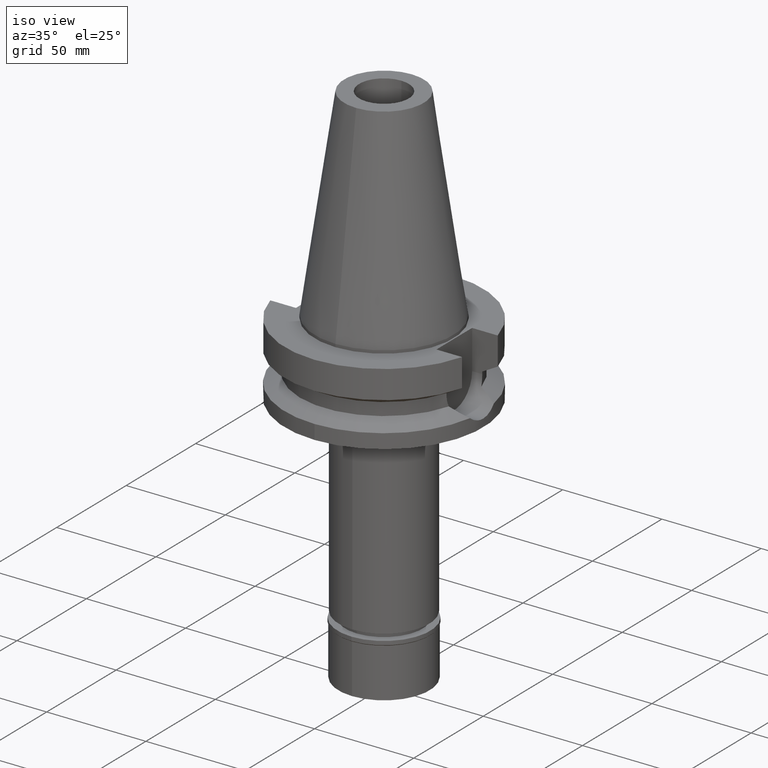
[diagram: clean part render]
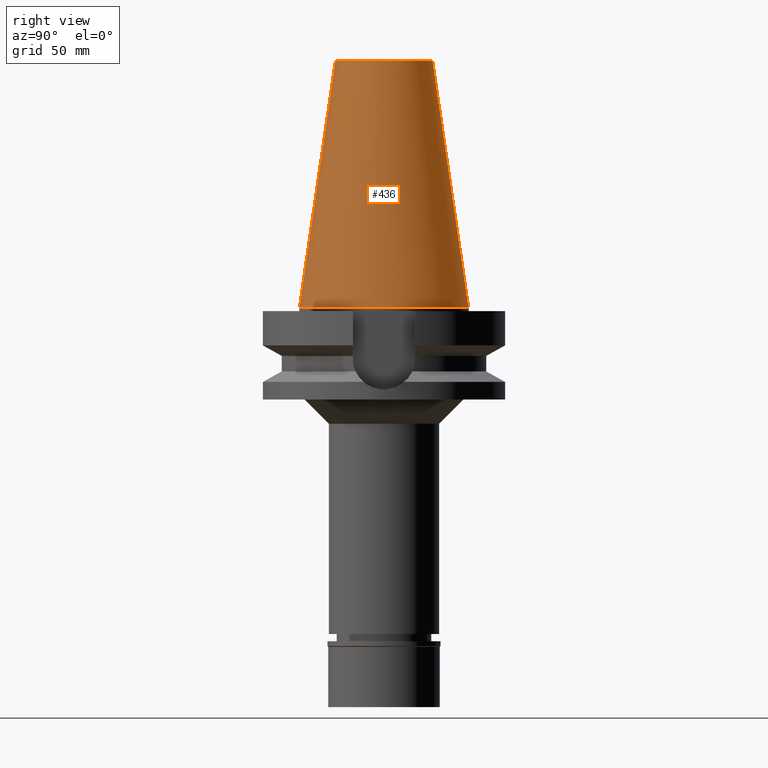
[diagram: tour spotlight — one face highlighted and labeled with its STEP entity id]
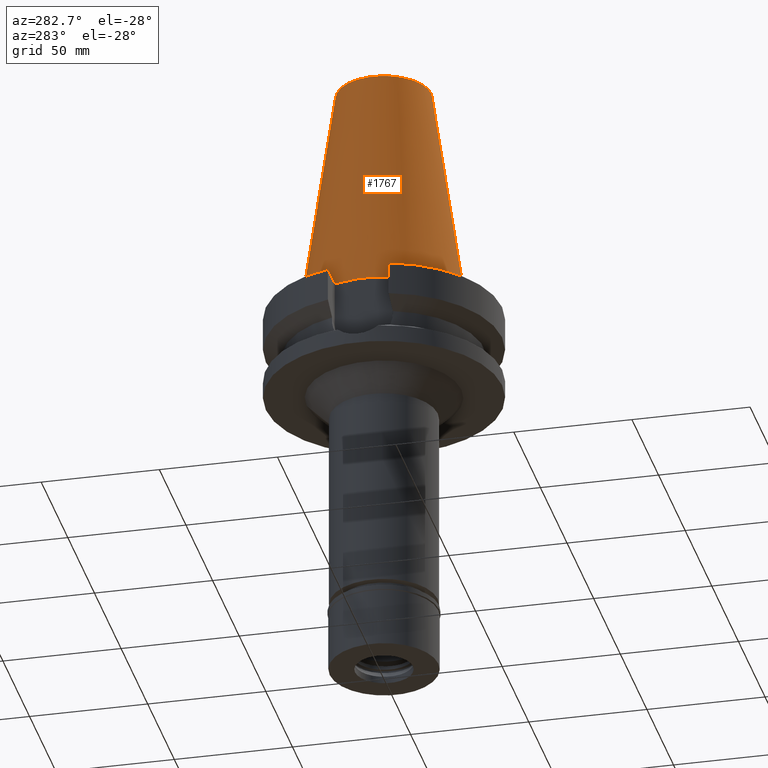
[diagram: tour spotlight — one face highlighted and labeled with its STEP entity id]
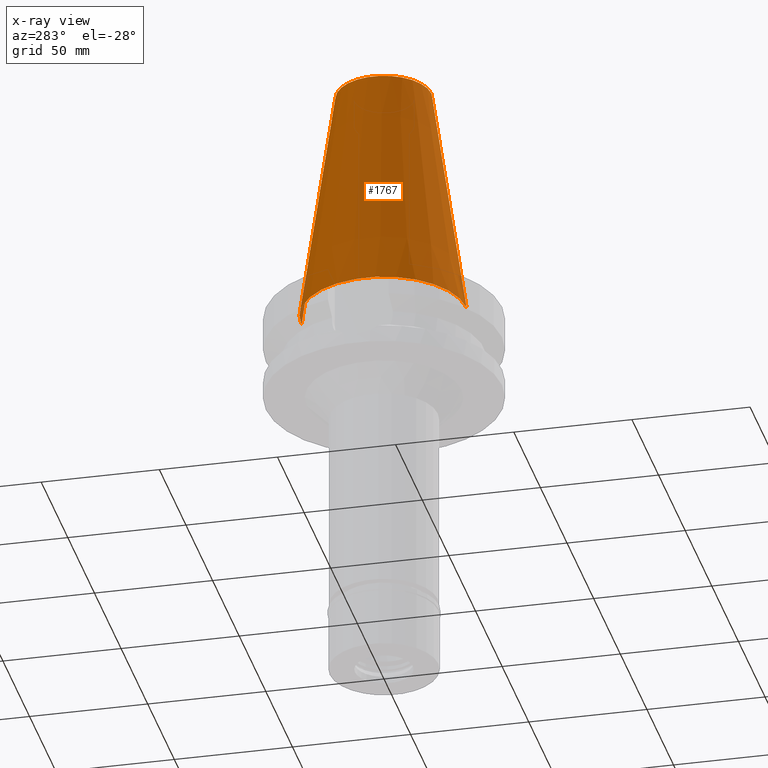
[diagram: x-ray of the same camera — body ghosted, this tour face saturated]
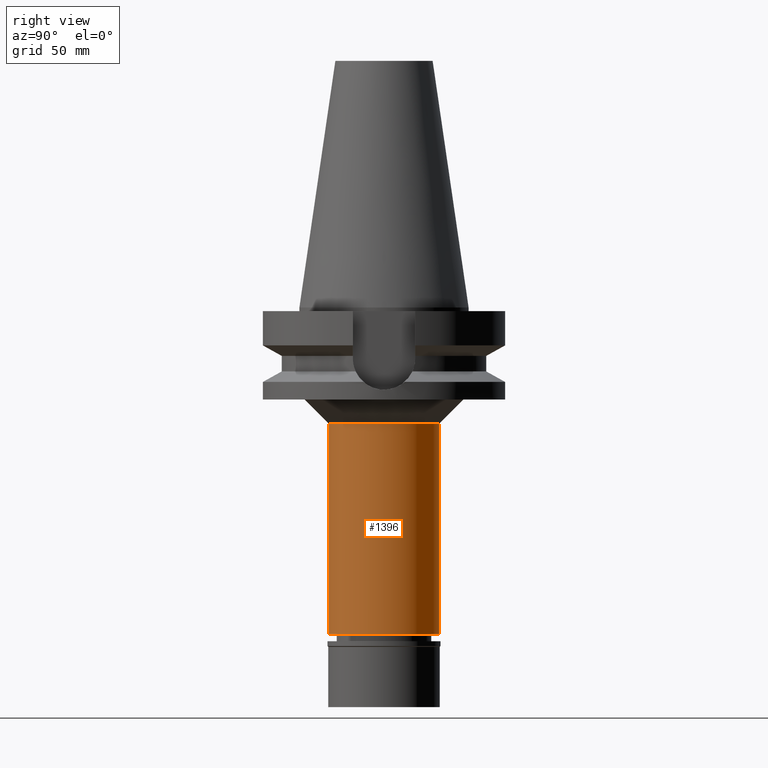
[diagram: tour spotlight — one face highlighted and labeled with its STEP entity id]
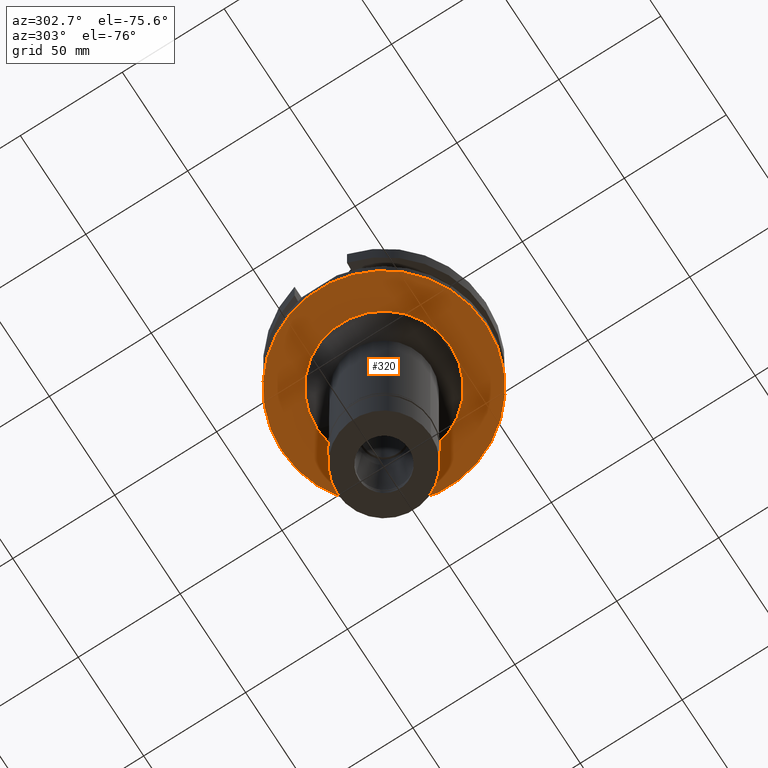
[diagram: tour spotlight — one face highlighted and labeled with its STEP entity id]
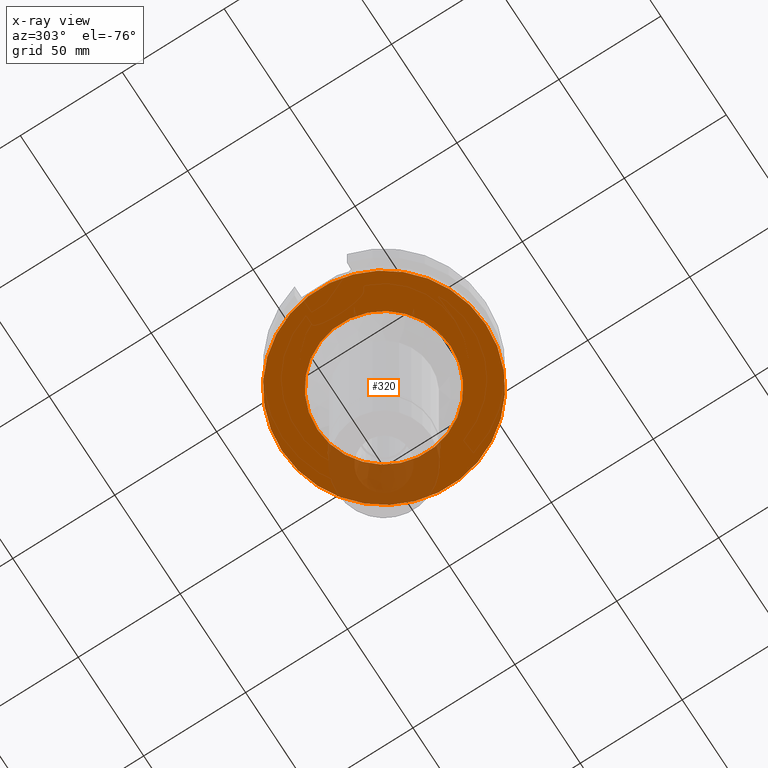
[diagram: x-ray of the same camera — body ghosted, this tour face saturated]
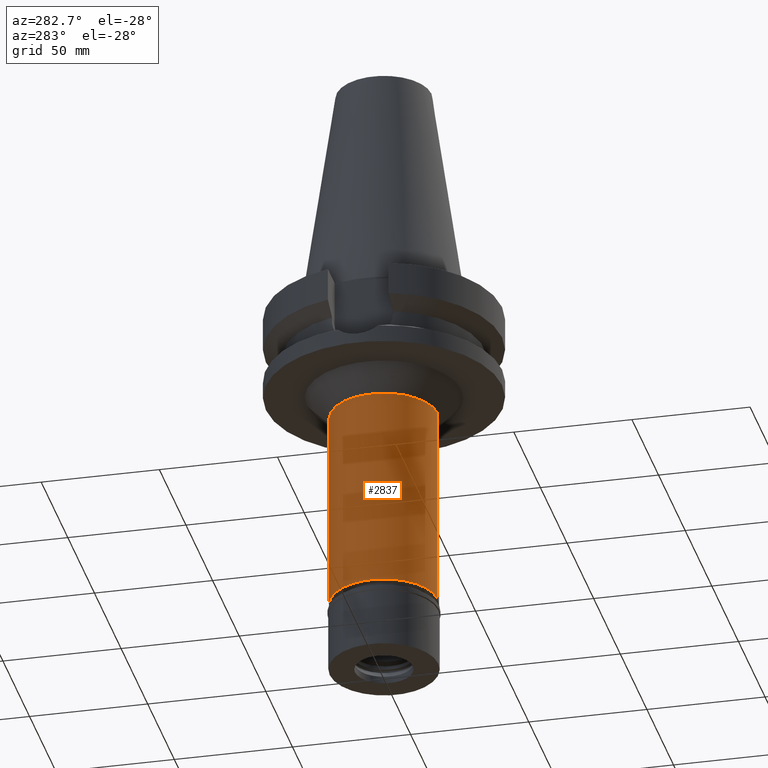
[diagram: tour spotlight — one face highlighted and labeled with its STEP entity id]
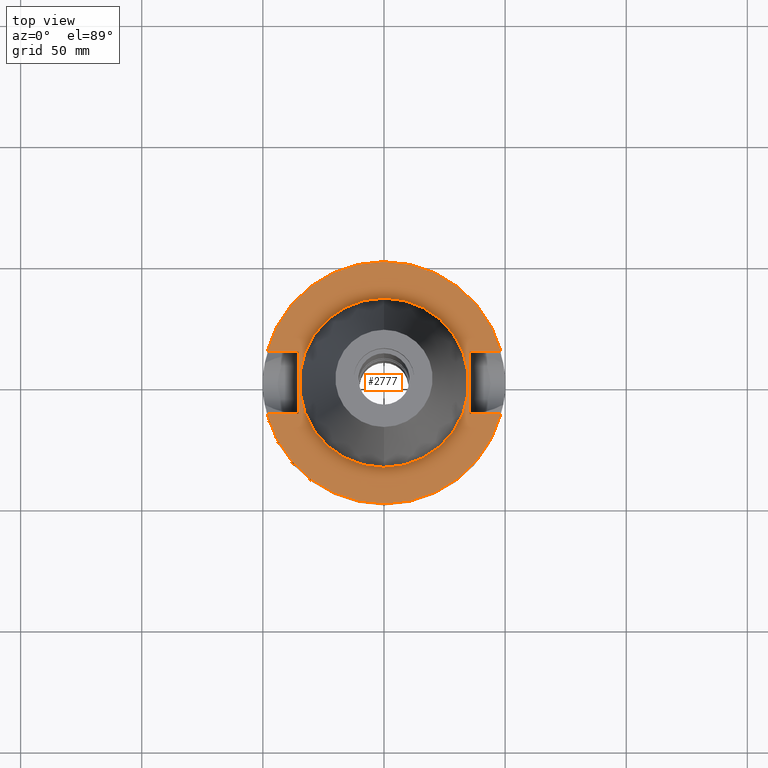
[diagram: tour spotlight — one face highlighted and labeled with its STEP entity id]
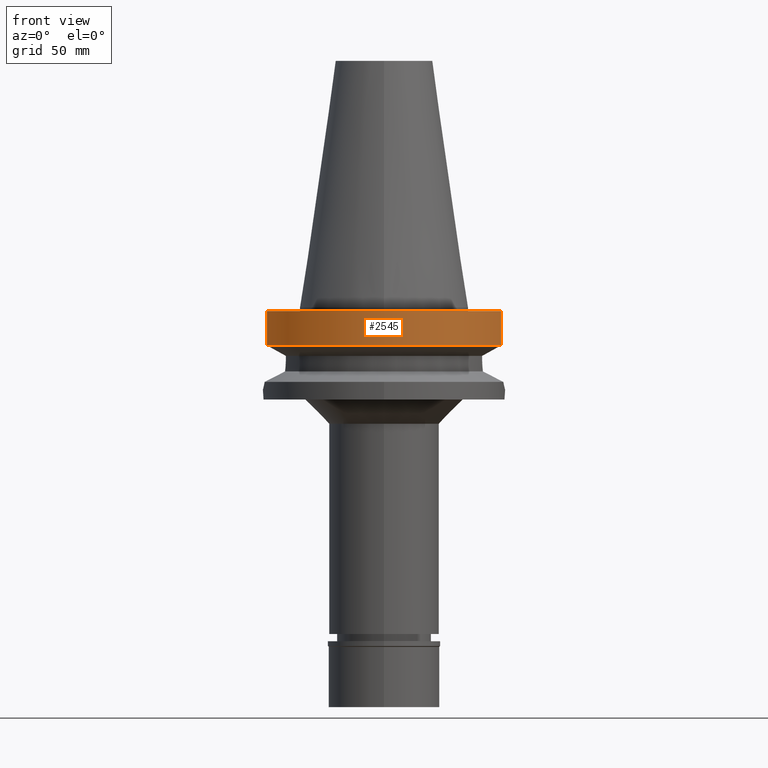
[diagram: tour spotlight — one face highlighted and labeled with its STEP entity id]
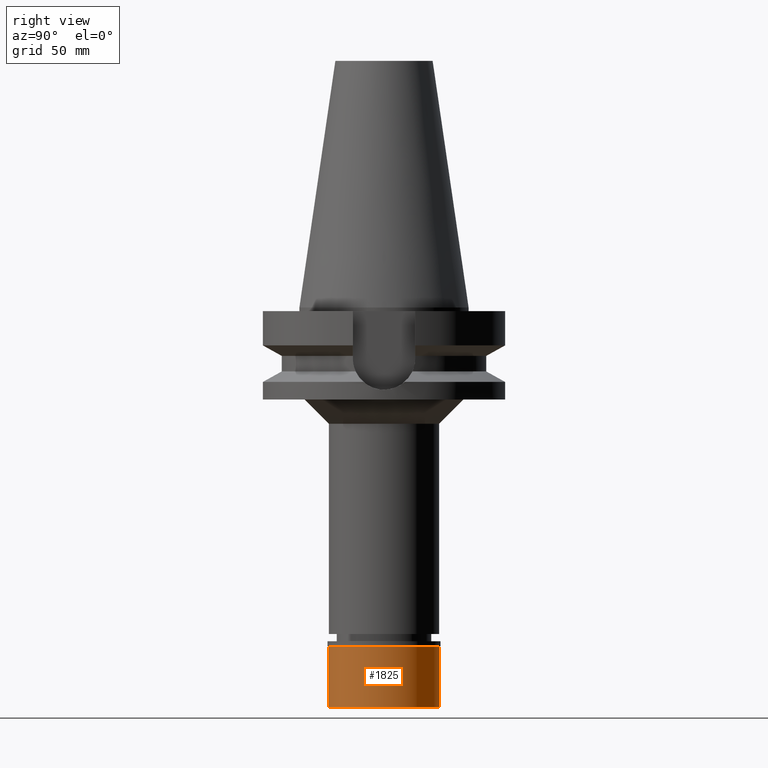
[diagram: tour spotlight — one face highlighted and labeled with its STEP entity id]
A machine part: a face-by-face anatomy tour. The part has 79 B-rep faces; the first image is the clean iso view, then the 8 largest visible faces are spotlighted one at a time (largest first), each with its STEP entity span.

Face 1 — right view, entity #436. In plain terms, the highlighted conical surface has half-angle 8.297 deg.
Definition (entity closure, byte-faithful):
#171 = DIRECTION ( 'NONE',  ( 0.0000000000000000000, 0.0000000000000000000, -1.000000000000000000 ) ) ;
#172 = CONICAL_SURFACE ( 'NONE', #2415, 27.50221485948000222, 0.1448099680379422438 ) ;
#286 = CIRCLE ( 'NONE', #537, 20.07942971896000017 ) ;
#287 = LINE ( 'NONE', #2502, #3086 ) ;
#371 = CIRCLE ( 'NONE', #3025, 34.92499999999999716 ) ;
#436 = ADVANCED_FACE ( 'NONE', ( #2336 ), #172, .T. ) ;
#485 = CARTESIAN_POINT ( 'NONE',  ( 0.0000000000000000000, 20.07942971896000017, 101.7999999999999972 ) ) ;
#504 = ORIENTED_EDGE ( 'NONE', *, *, #2429, .T. ) ;
#534 = EDGE_CURVE ( 'NONE', #1982, #1394, #1413, .T. ) ;
#537 = AXIS2_PLACEMENT_3D ( 'NONE', #2533, #1848, #2516 ) ;
#641 = ORIENTED_EDGE ( 'NONE', *, *, #2488, .T. ) ;
#644 = EDGE_CURVE ( 'NONE', #1394, #2717, #371, .T. ) ;
#746 = CARTESIAN_POINT ( 'NONE',  ( 0.0000000000000000000, 1.847992019912999597E-14, 3.979039320256999774E-13 ) ) ;
#963 = DIRECTION ( 'NONE',  ( 0.0000000000000000000, 0.0000000000000000000, -1.000000000000000000 ) ) ;
#1130 = CARTESIAN_POINT ( 'NONE',  ( 0.0000000000000000000, 20.07942971896000017, 101.7999999999999972 ) ) ;
#1390 = EDGE_LOOP ( 'NONE', ( #641, #504, #1805, #2940 ) ) ;
#1394 = VERTEX_POINT ( 'NONE', #1572 ) ;
#1413 = LINE ( 'NONE', #485, #2662 ) ;
#1572 = CARTESIAN_POINT ( 'NONE',  ( 0.0000000000000000000, 34.92499999999999716, 4.476419235289000232E-13 ) ) ;
#1805 = ORIENTED_EDGE ( 'NONE', *, *, #644, .F. ) ;
#1848 = DIRECTION ( 'NONE',  ( 0.0000000000000000000, 0.0000000000000000000, -1.000000000000000000 ) ) ;
#1931 = DIRECTION ( 'NONE',  ( 0.0000000000000000000, 1.000000000000000000, 0.0000000000000000000 ) ) ;
#1982 = VERTEX_POINT ( 'NONE', #1130 ) ;
#2160 = VERTEX_POINT ( 'NONE', #2483 ) ;
#2172 = DIRECTION ( 'NONE',  ( 0.0000000000000000000, -1.000000000000000000, 0.0000000000000000000 ) ) ;
#2336 = FACE_OUTER_BOUND ( 'NONE', #1390, .T. ) ;
#2415 = AXIS2_PLACEMENT_3D ( 'NONE', #2626, #171, #2172 ) ;
#2429 = EDGE_CURVE ( 'NONE', #2160, #2717, #287, .T. ) ;
#2455 = DIRECTION ( 'NONE',  ( 0.0000000000000000000, 0.1443043893538948075, -0.9895333461855641000 ) ) ;
#2483 = CARTESIAN_POINT ( 'NONE',  ( 0.0000000000000000000, -20.07942971896000017, 101.7999999999999972 ) ) ;
#2488 = EDGE_CURVE ( 'NONE', #1982, #2160, #286, .T. ) ;
#2502 = CARTESIAN_POINT ( 'NONE',  ( 0.0000000000000000000, -20.07942971896000017, 101.7999999999999972 ) ) ;
#2516 = DIRECTION ( 'NONE',  ( 0.0000000000000000000, 1.000000000000000000, 0.0000000000000000000 ) ) ;
#2533 = CARTESIAN_POINT ( 'NONE',  ( 0.0000000000000000000, 1.847992019912999597E-14, 101.7999999999999972 ) ) ;
#2626 = CARTESIAN_POINT ( 'NONE',  ( 0.0000000000000000000, 1.847992019912999597E-14, 50.89999999999999858 ) ) ;
#2662 = VECTOR ( 'NONE', #2455, 1000.000000000000114 ) ;
#2689 = DIRECTION ( 'NONE',  ( 0.0000000000000000000, -0.1443043893538948075, -0.9895333461855641000 ) ) ;
#2717 = VERTEX_POINT ( 'NONE', #3091 ) ;
#2940 = ORIENTED_EDGE ( 'NONE', *, *, #534, .F. ) ;
#3025 = AXIS2_PLACEMENT_3D ( 'NONE', #746, #963, #1931 ) ;
#3086 = VECTOR ( 'NONE', #2689, 1000.000000000000114 ) ;
#3091 = CARTESIAN_POINT ( 'NONE',  ( 0.0000000000000000000, -34.92499999999999716, 4.476419235289000232E-13 ) ) ;

Face 2 — auxiliary view, entity #1767. An x-ray twin of the same camera follows (body ghosted, this face saturated) — the face is partly hidden behind the body. In plain terms, the highlighted conical surface has half-angle 8.297 deg.
Definition (entity closure, byte-faithful):
#55 = CARTESIAN_POINT ( 'NONE',  ( 0.0000000000000000000, 1.847992019912999597E-14, 50.89999999999999858 ) ) ;
#178 = CIRCLE ( 'NONE', #2827, 34.92499999999999716 ) ;
#210 = ORIENTED_EDGE ( 'NONE', *, *, #534, .T. ) ;
#275 = DIRECTION ( 'NONE',  ( 0.0000000000000000000, -1.000000000000000000, 0.0000000000000000000 ) ) ;
#287 = LINE ( 'NONE', #2502, #3086 ) ;
#464 = EDGE_CURVE ( 'NONE', #2160, #1982, #2043, .T. ) ;
#485 = CARTESIAN_POINT ( 'NONE',  ( 0.0000000000000000000, 20.07942971896000017, 101.7999999999999972 ) ) ;
#534 = EDGE_CURVE ( 'NONE', #1982, #1394, #1413, .T. ) ;
#633 = DIRECTION ( 'NONE',  ( 0.0000000000000000000, -1.000000000000000000, 0.0000000000000000000 ) ) ;
#1117 = AXIS2_PLACEMENT_3D ( 'NONE', #2471, #1913, #2897 ) ;
#1130 = CARTESIAN_POINT ( 'NONE',  ( 0.0000000000000000000, 20.07942971896000017, 101.7999999999999972 ) ) ;
#1394 = VERTEX_POINT ( 'NONE', #1572 ) ;
#1413 = LINE ( 'NONE', #485, #2662 ) ;
#1435 = EDGE_CURVE ( 'NONE', #2717, #1394, #178, .T. ) ;
#1561 = DIRECTION ( 'NONE',  ( 0.0000000000000000000, 0.0000000000000000000, -1.000000000000000000 ) ) ;
#1571 = EDGE_LOOP ( 'NONE', ( #2871, #1903, #2613, #210 ) ) ;
#1572 = CARTESIAN_POINT ( 'NONE',  ( 0.0000000000000000000, 34.92499999999999716, 4.476419235289000232E-13 ) ) ;
#1593 = CONICAL_SURFACE ( 'NONE', #3030, 27.50221485948000222, 0.1448099680379422438 ) ;
#1742 = FACE_OUTER_BOUND ( 'NONE', #1571, .T. ) ;
#1767 = ADVANCED_FACE ( 'NONE', ( #1742 ), #1593, .T. ) ;
#1903 = ORIENTED_EDGE ( 'NONE', *, *, #2429, .F. ) ;
#1913 = DIRECTION ( 'NONE',  ( 0.0000000000000000000, 0.0000000000000000000, -1.000000000000000000 ) ) ;
#1982 = VERTEX_POINT ( 'NONE', #1130 ) ;
#2043 = CIRCLE ( 'NONE', #1117, 20.07942971896000017 ) ;
#2160 = VERTEX_POINT ( 'NONE', #2483 ) ;
#2429 = EDGE_CURVE ( 'NONE', #2160, #2717, #287, .T. ) ;
#2455 = DIRECTION ( 'NONE',  ( 0.0000000000000000000, 0.1443043893538948075, -0.9895333461855641000 ) ) ;
#2471 = CARTESIAN_POINT ( 'NONE',  ( 0.0000000000000000000, 1.847992019912999597E-14, 101.7999999999999972 ) ) ;
#2483 = CARTESIAN_POINT ( 'NONE',  ( 0.0000000000000000000, -20.07942971896000017, 101.7999999999999972 ) ) ;
#2502 = CARTESIAN_POINT ( 'NONE',  ( 0.0000000000000000000, -20.07942971896000017, 101.7999999999999972 ) ) ;
#2613 = ORIENTED_EDGE ( 'NONE', *, *, #464, .T. ) ;
#2662 = VECTOR ( 'NONE', #2455, 1000.000000000000114 ) ;
#2689 = DIRECTION ( 'NONE',  ( 0.0000000000000000000, -0.1443043893538948075, -0.9895333461855641000 ) ) ;
#2717 = VERTEX_POINT ( 'NONE', #3091 ) ;
#2730 = DIRECTION ( 'NONE',  ( 0.0000000000000000000, 0.0000000000000000000, -1.000000000000000000 ) ) ;
#2827 = AXIS2_PLACEMENT_3D ( 'NONE', #2830, #1561, #633 ) ;
#2830 = CARTESIAN_POINT ( 'NONE',  ( 0.0000000000000000000, 1.847992019912999597E-14, 3.979039320256999774E-13 ) ) ;
#2871 = ORIENTED_EDGE ( 'NONE', *, *, #1435, .F. ) ;
#2897 = DIRECTION ( 'NONE',  ( 0.0000000000000000000, -1.000000000000000000, 0.0000000000000000000 ) ) ;
#3030 = AXIS2_PLACEMENT_3D ( 'NONE', #55, #2730, #275 ) ;
#3086 = VECTOR ( 'NONE', #2689, 1000.000000000000114 ) ;
#3091 = CARTESIAN_POINT ( 'NONE',  ( 0.0000000000000000000, -34.92499999999999716, 4.476419235289000232E-13 ) ) ;

Face 3 — right view, entity #1396. In plain terms, the highlighted cylindrical surface (partial cylindrical patch) has radius 22.75 mm, axis along (0, 0, -1).
Definition (entity closure, byte-faithful):
#67 = CARTESIAN_POINT ( 'NONE',  ( 0.0000000000000000000, 22.75000000000000000, -134.8000000000000114 ) ) ;
#76 = ORIENTED_EDGE ( 'NONE', *, *, #3107, .T. ) ;
#93 = DIRECTION ( 'NONE',  ( 0.0000000000000000000, 0.0000000000000000000, 1.000000000000000000 ) ) ;
#109 = EDGE_CURVE ( 'NONE', #1999, #690, #1510, .T. ) ;
#151 = CARTESIAN_POINT ( 'NONE',  ( 0.0000000000000000000, 2.627969566289999846E-14, 114.5900000000000034 ) ) ;
#153 = DIRECTION ( 'NONE',  ( 0.0000000000000000000, 1.000000000000000000, 0.0000000000000000000 ) ) ;
#351 = DIRECTION ( 'NONE',  ( 0.0000000000000000000, 0.0000000000000000000, -1.000000000000000000 ) ) ;
#366 = DIRECTION ( 'NONE',  ( 0.0000000000000000000, 0.0000000000000000000, -1.000000000000000000 ) ) ;
#411 = VERTEX_POINT ( 'NONE', #1642 ) ;
#414 = EDGE_LOOP ( 'NONE', ( #2185, #2397, #76, #2658 ) ) ;
#433 = CIRCLE ( 'NONE', #2833, 22.75000000000000000 ) ;
#434 = AXIS2_PLACEMENT_3D ( 'NONE', #1762, #93, #1037 ) ;
#690 = VERTEX_POINT ( 'NONE', #2259 ) ;
#774 = VECTOR ( 'NONE', #351, 1000.000000000000000 ) ;
#849 = CYLINDRICAL_SURFACE ( 'NONE', #1434, 22.75000000000000000 ) ;
#1037 = DIRECTION ( 'NONE',  ( 0.0000000000000000000, -1.000000000000000000, 0.0000000000000000000 ) ) ;
#1396 = ADVANCED_FACE ( 'NONE', ( #1586 ), #849, .T. ) ;
#1434 = AXIS2_PLACEMENT_3D ( 'NONE', #151, #366, #2784 ) ;
#1459 = DIRECTION ( 'NONE',  ( 0.0000000000000000000, 0.0000000000000000000, -1.000000000000000000 ) ) ;
#1510 = LINE ( 'NONE', #2746, #2971 ) ;
#1586 = FACE_OUTER_BOUND ( 'NONE', #414, .T. ) ;
#1642 = CARTESIAN_POINT ( 'NONE',  ( 0.0000000000000000000, 22.75000000000000000, -48.00000000000000000 ) ) ;
#1673 = VERTEX_POINT ( 'NONE', #67 ) ;
#1762 = CARTESIAN_POINT ( 'NONE',  ( 0.0000000000000000000, 2.627969566289999846E-14, -134.8000000000000114 ) ) ;
#1803 = EDGE_CURVE ( 'NONE', #411, #1673, #2328, .T. ) ;
#1999 = VERTEX_POINT ( 'NONE', #2597 ) ;
#2164 = CIRCLE ( 'NONE', #434, 22.75000000000000000 ) ;
#2185 = ORIENTED_EDGE ( 'NONE', *, *, #2650, .T. ) ;
#2259 = CARTESIAN_POINT ( 'NONE',  ( 0.0000000000000000000, -22.75000000000000000, -134.8000000000000114 ) ) ;
#2328 = LINE ( 'NONE', #2583, #774 ) ;
#2397 = ORIENTED_EDGE ( 'NONE', *, *, #109, .T. ) ;
#2583 = CARTESIAN_POINT ( 'NONE',  ( 0.0000000000000000000, 22.75000000000000000, -48.00000000000000000 ) ) ;
#2597 = CARTESIAN_POINT ( 'NONE',  ( 0.0000000000000000000, -22.75000000000000000, -48.00000000000000000 ) ) ;
#2650 = EDGE_CURVE ( 'NONE', #411, #1999, #433, .T. ) ;
#2658 = ORIENTED_EDGE ( 'NONE', *, *, #1803, .F. ) ;
#2746 = CARTESIAN_POINT ( 'NONE',  ( 0.0000000000000000000, -22.75000000000000000, -48.00000000000000000 ) ) ;
#2767 = CARTESIAN_POINT ( 'NONE',  ( 0.0000000000000000000, 0.0000000000000000000, -48.00000000000000000 ) ) ;
#2784 = DIRECTION ( 'NONE',  ( 0.0000000000000000000, -1.000000000000000000, 0.0000000000000000000 ) ) ;
#2833 = AXIS2_PLACEMENT_3D ( 'NONE', #2767, #3026, #153 ) ;
#2971 = VECTOR ( 'NONE', #1459, 1000.000000000000000 ) ;
#3026 = DIRECTION ( 'NONE',  ( 0.0000000000000000000, 0.0000000000000000000, -1.000000000000000000 ) ) ;
#3107 = EDGE_CURVE ( 'NONE', #690, #1673, #2164, .T. ) ;

Face 4 — auxiliary view, entity #320. An x-ray twin of the same camera follows (body ghosted, this face saturated) — the face is partly hidden behind the body. In plain terms, the highlighted planar face has unit normal (0, 0, -1).
Definition (entity closure, byte-faithful):
#43 = DIRECTION ( 'NONE',  ( 0.0000000000000000000, -1.000000000000000000, 0.0000000000000000000 ) ) ;
#51 = ORIENTED_EDGE ( 'NONE', *, *, #1930, .F. ) ;
#107 = DIRECTION ( 'NONE',  ( 0.0000000000000000000, 1.000000000000000000, 0.0000000000000000000 ) ) ;
#134 = VERTEX_POINT ( 'NONE', #2916 ) ;
#225 = EDGE_CURVE ( 'NONE', #134, #3012, #1730, .T. ) ;
#299 = CARTESIAN_POINT ( 'NONE',  ( 0.0000000000000000000, 2.627969566289999846E-14, -38.00000000000000000 ) ) ;
#320 = ADVANCED_FACE ( 'NONE', ( #556, #1525 ), #321, .T. ) ;
#321 = PLANE ( 'NONE',  #863 ) ;
#419 = AXIS2_PLACEMENT_3D ( 'NONE', #492, #543, #2494 ) ;
#473 = EDGE_LOOP ( 'NONE', ( #2858, #51 ) ) ;
#492 = CARTESIAN_POINT ( 'NONE',  ( 0.0000000000000000000, 0.0000000000000000000, -38.00000000000000000 ) ) ;
#543 = DIRECTION ( 'NONE',  ( 0.0000000000000000000, 0.0000000000000000000, -1.000000000000000000 ) ) ;
#550 = CARTESIAN_POINT ( 'NONE',  ( 0.0000000000000000000, 2.627969566289999846E-14, -38.00000000000000000 ) ) ;
#556 = FACE_OUTER_BOUND ( 'NONE', #1110, .T. ) ;
#608 = DIRECTION ( 'NONE',  ( 0.0000000000000000000, -1.000000000000000000, 0.0000000000000000000 ) ) ;
#718 = EDGE_CURVE ( 'NONE', #1146, #989, #1276, .T. ) ;
#863 = AXIS2_PLACEMENT_3D ( 'NONE', #2384, #1101, #2607 ) ;
#989 = VERTEX_POINT ( 'NONE', #2437 ) ;
#1036 = CARTESIAN_POINT ( 'NONE',  ( 0.0000000000000000000, 50.00000000000000000, -38.00000000000000000 ) ) ;
#1058 = CARTESIAN_POINT ( 'NONE',  ( 0.0000000000000000000, 0.0000000000000000000, -38.00000000000000000 ) ) ;
#1101 = DIRECTION ( 'NONE',  ( 0.0000000000000000000, 0.0000000000000000000, -1.000000000000000000 ) ) ;
#1110 = EDGE_LOOP ( 'NONE', ( #2675, #1324 ) ) ;
#1146 = VERTEX_POINT ( 'NONE', #1036 ) ;
#1200 = DIRECTION ( 'NONE',  ( 0.0000000000000000000, 0.0000000000000000000, 1.000000000000000000 ) ) ;
#1276 = CIRCLE ( 'NONE', #2612, 50.00000000000000000 ) ;
#1289 = AXIS2_PLACEMENT_3D ( 'NONE', #299, #1200, #43 ) ;
#1295 = DIRECTION ( 'NONE',  ( 0.0000000000000000000, 0.0000000000000000000, -1.000000000000000000 ) ) ;
#1324 = ORIENTED_EDGE ( 'NONE', *, *, #2854, .F. ) ;
#1525 = FACE_BOUND ( 'NONE', #473, .T. ) ;
#1548 = DIRECTION ( 'NONE',  ( 0.0000000000000000000, 0.0000000000000000000, 1.000000000000000000 ) ) ;
#1730 = CIRCLE ( 'NONE', #419, 32.75000000000000000 ) ;
#1858 = CARTESIAN_POINT ( 'NONE',  ( 0.0000000000000000000, -32.75000000000000000, -38.00000000000000000 ) ) ;
#1896 = CIRCLE ( 'NONE', #3035, 32.75000000000000000 ) ;
#1905 = CIRCLE ( 'NONE', #1289, 50.00000000000000000 ) ;
#1930 = EDGE_CURVE ( 'NONE', #3012, #134, #1896, .T. ) ;
#2384 = CARTESIAN_POINT ( 'NONE',  ( 0.0000000000000000000, 0.0000000000000000000, -38.00000000000000000 ) ) ;
#2437 = CARTESIAN_POINT ( 'NONE',  ( 0.0000000000000000000, -50.00000000000000000, -38.00000000000000000 ) ) ;
#2494 = DIRECTION ( 'NONE',  ( 0.0000000000000000000, 1.000000000000000000, 0.0000000000000000000 ) ) ;
#2607 = DIRECTION ( 'NONE',  ( 0.0000000000000000000, -1.000000000000000000, 0.0000000000000000000 ) ) ;
#2612 = AXIS2_PLACEMENT_3D ( 'NONE', #550, #1548, #107 ) ;
#2675 = ORIENTED_EDGE ( 'NONE', *, *, #718, .F. ) ;
#2854 = EDGE_CURVE ( 'NONE', #989, #1146, #1905, .T. ) ;
#2858 = ORIENTED_EDGE ( 'NONE', *, *, #225, .F. ) ;
#2916 = CARTESIAN_POINT ( 'NONE',  ( 0.0000000000000000000, 32.75000000000000000, -38.00000000000000000 ) ) ;
#3012 = VERTEX_POINT ( 'NONE', #1858 ) ;
#3035 = AXIS2_PLACEMENT_3D ( 'NONE', #1058, #1295, #608 ) ;

Face 5 — auxiliary view, entity #2837. In plain terms, the highlighted cylindrical surface (partial cylindrical patch) has radius 22.75 mm, axis along (0, 0, -1).
Definition (entity closure, byte-faithful):
#67 = CARTESIAN_POINT ( 'NONE',  ( 0.0000000000000000000, 22.75000000000000000, -134.8000000000000114 ) ) ;
#109 = EDGE_CURVE ( 'NONE', #1999, #690, #1510, .T. ) ;
#351 = DIRECTION ( 'NONE',  ( 0.0000000000000000000, 0.0000000000000000000, -1.000000000000000000 ) ) ;
#411 = VERTEX_POINT ( 'NONE', #1642 ) ;
#426 = CIRCLE ( 'NONE', #2821, 22.75000000000000000 ) ;
#690 = VERTEX_POINT ( 'NONE', #2259 ) ;
#705 = ORIENTED_EDGE ( 'NONE', *, *, #2470, .T. ) ;
#744 = DIRECTION ( 'NONE',  ( 0.0000000000000000000, 1.000000000000000000, 0.0000000000000000000 ) ) ;
#774 = VECTOR ( 'NONE', #351, 1000.000000000000000 ) ;
#977 = AXIS2_PLACEMENT_3D ( 'NONE', #1203, #2188, #1007 ) ;
#979 = CYLINDRICAL_SURFACE ( 'NONE', #2931, 22.75000000000000000 ) ;
#1007 = DIRECTION ( 'NONE',  ( 0.0000000000000000000, -1.000000000000000000, 0.0000000000000000000 ) ) ;
#1203 = CARTESIAN_POINT ( 'NONE',  ( 0.0000000000000000000, 0.0000000000000000000, -48.00000000000000000 ) ) ;
#1218 = EDGE_CURVE ( 'NONE', #1673, #690, #426, .T. ) ;
#1247 = CARTESIAN_POINT ( 'NONE',  ( 0.0000000000000000000, 2.627969566289999846E-14, -134.8000000000000114 ) ) ;
#1448 = CARTESIAN_POINT ( 'NONE',  ( 0.0000000000000000000, 2.627969566289999846E-14, 114.5900000000000034 ) ) ;
#1459 = DIRECTION ( 'NONE',  ( 0.0000000000000000000, 0.0000000000000000000, -1.000000000000000000 ) ) ;
#1510 = LINE ( 'NONE', #2746, #2971 ) ;
#1528 = DIRECTION ( 'NONE',  ( 0.0000000000000000000, 0.0000000000000000000, 1.000000000000000000 ) ) ;
#1556 = ORIENTED_EDGE ( 'NONE', *, *, #1803, .T. ) ;
#1642 = CARTESIAN_POINT ( 'NONE',  ( 0.0000000000000000000, 22.75000000000000000, -48.00000000000000000 ) ) ;
#1661 = ORIENTED_EDGE ( 'NONE', *, *, #1218, .T. ) ;
#1673 = VERTEX_POINT ( 'NONE', #67 ) ;
#1803 = EDGE_CURVE ( 'NONE', #411, #1673, #2328, .T. ) ;
#1999 = VERTEX_POINT ( 'NONE', #2597 ) ;
#2028 = ORIENTED_EDGE ( 'NONE', *, *, #109, .F. ) ;
#2188 = DIRECTION ( 'NONE',  ( 0.0000000000000000000, 0.0000000000000000000, -1.000000000000000000 ) ) ;
#2259 = CARTESIAN_POINT ( 'NONE',  ( 0.0000000000000000000, -22.75000000000000000, -134.8000000000000114 ) ) ;
#2328 = LINE ( 'NONE', #2583, #774 ) ;
#2329 = EDGE_LOOP ( 'NONE', ( #1661, #2028, #705, #1556 ) ) ;
#2399 = FACE_OUTER_BOUND ( 'NONE', #2329, .T. ) ;
#2470 = EDGE_CURVE ( 'NONE', #1999, #411, #2984, .T. ) ;
#2583 = CARTESIAN_POINT ( 'NONE',  ( 0.0000000000000000000, 22.75000000000000000, -48.00000000000000000 ) ) ;
#2597 = CARTESIAN_POINT ( 'NONE',  ( 0.0000000000000000000, -22.75000000000000000, -48.00000000000000000 ) ) ;
#2746 = CARTESIAN_POINT ( 'NONE',  ( 0.0000000000000000000, -22.75000000000000000, -48.00000000000000000 ) ) ;
#2821 = AXIS2_PLACEMENT_3D ( 'NONE', #1247, #1528, #744 ) ;
#2837 = ADVANCED_FACE ( 'NONE', ( #2399 ), #979, .T. ) ;
#2905 = DIRECTION ( 'NONE',  ( 0.0000000000000000000, 0.0000000000000000000, -1.000000000000000000 ) ) ;
#2931 = AXIS2_PLACEMENT_3D ( 'NONE', #1448, #2905, #2956 ) ;
#2956 = DIRECTION ( 'NONE',  ( 0.0000000000000000000, -1.000000000000000000, 0.0000000000000000000 ) ) ;
#2971 = VECTOR ( 'NONE', #1459, 1000.000000000000000 ) ;
#2984 = CIRCLE ( 'NONE', #977, 22.75000000000000000 ) ;

Face 6 — top view, entity #2777. In plain terms, the highlighted planar face has unit normal (0, 0, -1).
Definition (entity closure, byte-faithful):
#32 = EDGE_CURVE ( 'NONE', #959, #1255, #1922, .T. ) ;
#98 = VERTEX_POINT ( 'NONE', #2413 ) ;
#101 = DIRECTION ( 'NONE',  ( 0.0000000000000000000, -1.000000000000000000, 0.0000000000000000000 ) ) ;
#204 = CARTESIAN_POINT ( 'NONE',  ( -48.32057015392000210, 12.84999999999999964, -1.500000000000000000 ) ) ;
#236 = FACE_BOUND ( 'NONE', #1261, .T. ) ;
#255 = CARTESIAN_POINT ( 'NONE',  ( 48.32057015392000210, 12.84999999999999964, -1.500000000000000000 ) ) ;
#305 = ORIENTED_EDGE ( 'NONE', *, *, #767, .T. ) ;
#329 = DIRECTION ( 'NONE',  ( 0.0000000000000000000, 1.000000000000000000, 0.0000000000000000000 ) ) ;
#346 = DIRECTION ( 'NONE',  ( 1.000000000000000000, 0.0000000000000000000, 0.0000000000000000000 ) ) ;
#403 = DIRECTION ( 'NONE',  ( -1.000000000000000000, 0.0000000000000000000, 0.0000000000000000000 ) ) ;
#423 = CIRCLE ( 'NONE', #2714, 50.00000000000000000 ) ;
#461 = FACE_OUTER_BOUND ( 'NONE', #2522, .T. ) ;
#467 = ORIENTED_EDGE ( 'NONE', *, *, #3034, .F. ) ;
#469 = VECTOR ( 'NONE', #329, 1000.000000000000000 ) ;
#480 = CIRCLE ( 'NONE', #1285, 34.92499999999999716 ) ;
#483 = VECTOR ( 'NONE', #346, 1000.000000000000000 ) ;
#600 = CARTESIAN_POINT ( 'NONE',  ( -35.39999999999999858, 12.84999999999999964, -1.500000000000000000 ) ) ;
#601 = CARTESIAN_POINT ( 'NONE',  ( 35.39999999999999858, -12.84999999999999964, -1.500000000000000000 ) ) ;
#639 = EDGE_CURVE ( 'NONE', #2829, #670, #423, .T. ) ;
#670 = VERTEX_POINT ( 'NONE', #255 ) ;
#679 = EDGE_CURVE ( 'NONE', #98, #1190, #2926, .T. ) ;
#682 = AXIS2_PLACEMENT_3D ( 'NONE', #1341, #2356, #1111 ) ;
#767 = EDGE_CURVE ( 'NONE', #98, #1875, #3053, .T. ) ;
#821 = CARTESIAN_POINT ( 'NONE',  ( -35.39999999999999858, -12.84999999999999964, -1.500000000000000000 ) ) ;
#870 = EDGE_CURVE ( 'NONE', #1190, #2829, #2799, .T. ) ;
#877 = VECTOR ( 'NONE', #1040, 1000.000000000000000 ) ;
#878 = DIRECTION ( 'NONE',  ( 0.0000000000000000000, 0.0000000000000000000, 1.000000000000000000 ) ) ;
#929 = CIRCLE ( 'NONE', #682, 50.00000000000000000 ) ;
#943 = DIRECTION ( 'NONE',  ( 0.0000000000000000000, 0.0000000000000000000, 1.000000000000000000 ) ) ;
#959 = VERTEX_POINT ( 'NONE', #1424 ) ;
#961 = EDGE_CURVE ( 'NONE', #2645, #1836, #2472, .T. ) ;
#1022 = CARTESIAN_POINT ( 'NONE',  ( 35.39999999999999858, -12.84999999999999964, -1.500000000000000000 ) ) ;
#1040 = DIRECTION ( 'NONE',  ( 1.000000000000000000, 0.0000000000000000000, 0.0000000000000000000 ) ) ;
#1088 = ORIENTED_EDGE ( 'NONE', *, *, #32, .F. ) ;
#1111 = DIRECTION ( 'NONE',  ( 0.0000000000000000000, -1.000000000000000000, 0.0000000000000000000 ) ) ;
#1188 = DIRECTION ( 'NONE',  ( 0.0000000000000000000, 0.0000000000000000000, -1.000000000000000000 ) ) ;
#1190 = VERTEX_POINT ( 'NONE', #2955 ) ;
#1206 = ORIENTED_EDGE ( 'NONE', *, *, #2600, .T. ) ;
#1255 = VERTEX_POINT ( 'NONE', #1022 ) ;
#1261 = EDGE_LOOP ( 'NONE', ( #2165, #1884 ) ) ;
#1285 = AXIS2_PLACEMENT_3D ( 'NONE', #3079, #878, #101 ) ;
#1325 = VECTOR ( 'NONE', #403, 1000.000000000000000 ) ;
#1340 = CARTESIAN_POINT ( 'NONE',  ( 48.32057015392000210, -12.84999999999999964, -1.500000000000000000 ) ) ;
#1341 = CARTESIAN_POINT ( 'NONE',  ( 0.0000000000000000000, 2.627969566289999846E-14, -1.500000000000000000 ) ) ;
#1377 = AXIS2_PLACEMENT_3D ( 'NONE', #1891, #943, #2904 ) ;
#1424 = CARTESIAN_POINT ( 'NONE',  ( 35.39999999999999858, 12.84999999999999964, -1.500000000000000000 ) ) ;
#1426 = CARTESIAN_POINT ( 'NONE',  ( 0.0000000000000000000, 1.206277097159999845E-14, -1.500000000000000000 ) ) ;
#1500 = AXIS2_PLACEMENT_3D ( 'NONE', #1426, #3117, #2639 ) ;
#1550 = LINE ( 'NONE', #601, #483 ) ;
#1632 = DIRECTION ( 'NONE',  ( 0.0000000000000000000, -1.000000000000000000, 0.0000000000000000000 ) ) ;
#1737 = ORIENTED_EDGE ( 'NONE', *, *, #2507, .F. ) ;
#1828 = DIRECTION ( 'NONE',  ( -1.000000000000000000, 0.0000000000000000000, 0.0000000000000000000 ) ) ;
#1836 = VERTEX_POINT ( 'NONE', #2793 ) ;
#1845 = CARTESIAN_POINT ( 'NONE',  ( -35.39999999999999858, -12.84999999999999964, -1.500000000000000000 ) ) ;
#1859 = VERTEX_POINT ( 'NONE', #1340 ) ;
#1875 = VERTEX_POINT ( 'NONE', #2074 ) ;
#1884 = ORIENTED_EDGE ( 'NONE', *, *, #1966, .F. ) ;
#1891 = CARTESIAN_POINT ( 'NONE',  ( 0.0000000000000000000, 2.627969566289999846E-14, -1.500000000000000000 ) ) ;
#1922 = LINE ( 'NONE', #3127, #2355 ) ;
#1928 = PLANE ( 'NONE',  #1500 ) ;
#1966 = EDGE_CURVE ( 'NONE', #1836, #2645, #480, .T. ) ;
#2074 = CARTESIAN_POINT ( 'NONE',  ( -48.32057015392000210, -12.84999999999999964, -1.500000000000000000 ) ) ;
#2165 = ORIENTED_EDGE ( 'NONE', *, *, #961, .F. ) ;
#2305 = LINE ( 'NONE', #2321, #877 ) ;
#2321 = CARTESIAN_POINT ( 'NONE',  ( 35.39999999999999858, 12.84999999999999964, -1.500000000000000000 ) ) ;
#2334 = CARTESIAN_POINT ( 'NONE',  ( 0.0000000000000000000, 34.92499999999999716, -1.500000000000000000 ) ) ;
#2355 = VECTOR ( 'NONE', #1632, 1000.000000000000000 ) ;
#2356 = DIRECTION ( 'NONE',  ( 0.0000000000000000000, 0.0000000000000000000, -1.000000000000000000 ) ) ;
#2388 = ORIENTED_EDGE ( 'NONE', *, *, #870, .F. ) ;
#2393 = ORIENTED_EDGE ( 'NONE', *, *, #679, .F. ) ;
#2413 = CARTESIAN_POINT ( 'NONE',  ( -35.39999999999999858, -12.84999999999999964, -1.500000000000000000 ) ) ;
#2472 = CIRCLE ( 'NONE', #1377, 34.92499999999999716 ) ;
#2507 = EDGE_CURVE ( 'NONE', #1255, #1859, #1550, .T. ) ;
#2522 = EDGE_LOOP ( 'NONE', ( #305, #467, #1737, #1088, #1206, #3064, #2388, #2393 ) ) ;
#2600 = EDGE_CURVE ( 'NONE', #959, #670, #2305, .T. ) ;
#2639 = DIRECTION ( 'NONE',  ( 0.0000000000000000000, -1.000000000000000000, 0.0000000000000000000 ) ) ;
#2641 = DIRECTION ( 'NONE',  ( 0.0000000000000000000, 1.000000000000000000, 0.0000000000000000000 ) ) ;
#2645 = VERTEX_POINT ( 'NONE', #2334 ) ;
#2714 = AXIS2_PLACEMENT_3D ( 'NONE', #2943, #1188, #2641 ) ;
#2777 = ADVANCED_FACE ( 'NONE', ( #461, #236 ), #1928, .F. ) ;
#2793 = CARTESIAN_POINT ( 'NONE',  ( 0.0000000000000000000, -34.92499999999999716, -1.500000000000000000 ) ) ;
#2799 = LINE ( 'NONE', #600, #2818 ) ;
#2818 = VECTOR ( 'NONE', #1828, 1000.000000000000000 ) ;
#2829 = VERTEX_POINT ( 'NONE', #204 ) ;
#2904 = DIRECTION ( 'NONE',  ( 0.0000000000000000000, 1.000000000000000000, 0.0000000000000000000 ) ) ;
#2926 = LINE ( 'NONE', #821, #469 ) ;
#2943 = CARTESIAN_POINT ( 'NONE',  ( 0.0000000000000000000, 2.627969566289999846E-14, -1.500000000000000000 ) ) ;
#2955 = CARTESIAN_POINT ( 'NONE',  ( -35.39999999999999858, 12.84999999999999964, -1.500000000000000000 ) ) ;
#3034 = EDGE_CURVE ( 'NONE', #1859, #1875, #929, .T. ) ;
#3053 = LINE ( 'NONE', #1845, #1325 ) ;
#3064 = ORIENTED_EDGE ( 'NONE', *, *, #639, .F. ) ;
#3079 = CARTESIAN_POINT ( 'NONE',  ( 0.0000000000000000000, 2.627969566289999846E-14, -1.500000000000000000 ) ) ;
#3117 = DIRECTION ( 'NONE',  ( 0.0000000000000000000, 0.0000000000000000000, -1.000000000000000000 ) ) ;
#3127 = CARTESIAN_POINT ( 'NONE',  ( 35.39999999999999858, 12.84999999999999964, -1.500000000000000000 ) ) ;

Face 7 — front view, entity #2545. In plain terms, the highlighted cylindrical surface (partial cylindrical patch) has radius 50 mm, axis along (0, 0, -1).
Definition (entity closure, byte-faithful):
#33 = AXIS2_PLACEMENT_3D ( 'NONE', #331, #1531, #1595 ) ;
#57 = DIRECTION ( 'NONE',  ( 0.0000000000000000000, -1.000000000000000000, 0.0000000000000000000 ) ) ;
#331 = CARTESIAN_POINT ( 'NONE',  ( 0.0000000000000000000, 2.627969566289999846E-14, 114.5900000000000034 ) ) ;
#373 = CYLINDRICAL_SURFACE ( 'NONE', #33, 50.00000000000000000 ) ;
#375 = CIRCLE ( 'NONE', #2874, 50.00000000000000000 ) ;
#546 = CARTESIAN_POINT ( 'NONE',  ( -48.32056912814000071, -12.85000385727999905, -15.66265768250999990 ) ) ;
#605 = ORIENTED_EDGE ( 'NONE', *, *, #713, .F. ) ;
#682 = AXIS2_PLACEMENT_3D ( 'NONE', #1341, #2356, #1111 ) ;
#713 = EDGE_CURVE ( 'NONE', #1106, #1875, #1504, .T. ) ;
#793 = DIRECTION ( 'NONE',  ( -7.242826062940713647E-08, 2.723558434545890236E-07, 0.9999999999999603650 ) ) ;
#929 = CIRCLE ( 'NONE', #682, 50.00000000000000000 ) ;
#930 = CARTESIAN_POINT ( 'NONE',  ( 48.32057015392000210, -12.84999999999999964, -15.66269223573000069 ) ) ;
#1056 = VERTEX_POINT ( 'NONE', #930 ) ;
#1106 = VERTEX_POINT ( 'NONE', #546 ) ;
#1111 = DIRECTION ( 'NONE',  ( 0.0000000000000000000, -1.000000000000000000, 0.0000000000000000000 ) ) ;
#1254 = EDGE_CURVE ( 'NONE', #1106, #1056, #375, .T. ) ;
#1340 = CARTESIAN_POINT ( 'NONE',  ( 48.32057015392000210, -12.84999999999999964, -1.500000000000000000 ) ) ;
#1341 = CARTESIAN_POINT ( 'NONE',  ( 0.0000000000000000000, 2.627969566289999846E-14, -1.500000000000000000 ) ) ;
#1366 = EDGE_CURVE ( 'NONE', #1859, #1056, #1371, .T. ) ;
#1371 = LINE ( 'NONE', #1860, #2919 ) ;
#1504 = LINE ( 'NONE', #2487, #2973 ) ;
#1531 = DIRECTION ( 'NONE',  ( 0.0000000000000000000, 0.0000000000000000000, -1.000000000000000000 ) ) ;
#1595 = DIRECTION ( 'NONE',  ( 0.0000000000000000000, -1.000000000000000000, 0.0000000000000000000 ) ) ;
#1616 = ORIENTED_EDGE ( 'NONE', *, *, #1366, .F. ) ;
#1743 = EDGE_LOOP ( 'NONE', ( #605, #3032, #1616, #2405 ) ) ;
#1772 = CARTESIAN_POINT ( 'NONE',  ( 0.0000000000000000000, 1.006319759053999930E-14, -15.66269223573000069 ) ) ;
#1829 = FACE_OUTER_BOUND ( 'NONE', #1743, .T. ) ;
#1859 = VERTEX_POINT ( 'NONE', #1340 ) ;
#1860 = CARTESIAN_POINT ( 'NONE',  ( 48.32057015392000210, -12.84999999999999964, -1.500000000000000000 ) ) ;
#1875 = VERTEX_POINT ( 'NONE', #2074 ) ;
#1984 = DIRECTION ( 'NONE',  ( 0.0000000000000000000, 0.0000000000000000000, 1.000000000000000000 ) ) ;
#2074 = CARTESIAN_POINT ( 'NONE',  ( -48.32057015392000210, -12.84999999999999964, -1.500000000000000000 ) ) ;
#2356 = DIRECTION ( 'NONE',  ( 0.0000000000000000000, 0.0000000000000000000, -1.000000000000000000 ) ) ;
#2405 = ORIENTED_EDGE ( 'NONE', *, *, #3034, .T. ) ;
#2487 = CARTESIAN_POINT ( 'NONE',  ( -48.32056912814000071, -12.85000385727999905, -15.66265768250999990 ) ) ;
#2545 = ADVANCED_FACE ( 'NONE', ( #1829 ), #373, .T. ) ;
#2846 = DIRECTION ( 'NONE',  ( -7.245235590871711235E-08, -2.724464493457891478E-07, -0.9999999999999603650 ) ) ;
#2874 = AXIS2_PLACEMENT_3D ( 'NONE', #1772, #1984, #57 ) ;
#2919 = VECTOR ( 'NONE', #2846, 999.9999999999998863 ) ;
#2973 = VECTOR ( 'NONE', #793, 1000.000000000000114 ) ;
#3032 = ORIENTED_EDGE ( 'NONE', *, *, #1254, .T. ) ;
#3034 = EDGE_CURVE ( 'NONE', #1859, #1875, #929, .T. ) ;

Face 8 — right view, entity #1825. In plain terms, the highlighted cylindrical surface (partial cylindrical patch) has radius 23 mm, axis along (0, 0, -1).
Definition (entity closure, byte-faithful):
#18 = LINE ( 'NONE', #753, #1116 ) ;
#30 = CARTESIAN_POINT ( 'NONE',  ( 0.0000000000000000000, 23.00000000000000000, -2.299999999999999822 ) ) ;
#73 = CIRCLE ( 'NONE', #576, 23.00000000000000000 ) ;
#127 = EDGE_CURVE ( 'NONE', #1062, #355, #18, .T. ) ;
#249 = EDGE_CURVE ( 'NONE', #555, #2491, #987, .T. ) ;
#259 = ORIENTED_EDGE ( 'NONE', *, *, #127, .T. ) ;
#293 = DIRECTION ( 'NONE',  ( 0.0000000000000000000, 0.0000000000000000000, -1.000000000000000000 ) ) ;
#355 = VERTEX_POINT ( 'NONE', #2084 ) ;
#540 = CIRCLE ( 'NONE', #2053, 23.00000000000000000 ) ;
#555 = VERTEX_POINT ( 'NONE', #30 ) ;
#576 = AXIS2_PLACEMENT_3D ( 'NONE', #683, #1163, #2637 ) ;
#629 = CYLINDRICAL_SURFACE ( 'NONE', #1176, 23.00000000000000000 ) ;
#683 = CARTESIAN_POINT ( 'NONE',  ( 0.0000000000000000000, 0.0000000000000000000, -27.19999999999999929 ) ) ;
#753 = CARTESIAN_POINT ( 'NONE',  ( 0.0000000000000000000, -23.00000000000000000, -2.299999999999999822 ) ) ;
#764 = ORIENTED_EDGE ( 'NONE', *, *, #3028, .T. ) ;
#804 = DIRECTION ( 'NONE',  ( 0.0000000000000000000, 1.000000000000000000, 0.0000000000000000000 ) ) ;
#942 = EDGE_LOOP ( 'NONE', ( #764, #259, #3141, #1043 ) ) ;
#987 = LINE ( 'NONE', #1968, #1634 ) ;
#1018 = EDGE_CURVE ( 'NONE', #355, #2491, #73, .T. ) ;
#1043 = ORIENTED_EDGE ( 'NONE', *, *, #249, .F. ) ;
#1062 = VERTEX_POINT ( 'NONE', #1910 ) ;
#1116 = VECTOR ( 'NONE', #1278, 1000.000000000000000 ) ;
#1163 = DIRECTION ( 'NONE',  ( 0.0000000000000000000, 0.0000000000000000000, 1.000000000000000000 ) ) ;
#1176 = AXIS2_PLACEMENT_3D ( 'NONE', #2551, #1306, #1808 ) ;
#1278 = DIRECTION ( 'NONE',  ( 0.0000000000000000000, 0.0000000000000000000, -1.000000000000000000 ) ) ;
#1306 = DIRECTION ( 'NONE',  ( 0.0000000000000000000, 0.0000000000000000000, -1.000000000000000000 ) ) ;
#1583 = CARTESIAN_POINT ( 'NONE',  ( 0.0000000000000000000, 0.0000000000000000000, -2.299999999999999822 ) ) ;
#1634 = VECTOR ( 'NONE', #293, 1000.000000000000000 ) ;
#1808 = DIRECTION ( 'NONE',  ( 0.0000000000000000000, -1.000000000000000000, 0.0000000000000000000 ) ) ;
#1825 = ADVANCED_FACE ( 'NONE', ( #3036 ), #629, .T. ) ;
#1910 = CARTESIAN_POINT ( 'NONE',  ( 0.0000000000000000000, -23.00000000000000000, -2.299999999999999822 ) ) ;
#1968 = CARTESIAN_POINT ( 'NONE',  ( 0.0000000000000000000, 23.00000000000000000, -2.299999999999999822 ) ) ;
#2005 = DIRECTION ( 'NONE',  ( 0.0000000000000000000, 0.0000000000000000000, -1.000000000000000000 ) ) ;
#2053 = AXIS2_PLACEMENT_3D ( 'NONE', #1583, #2005, #804 ) ;
#2084 = CARTESIAN_POINT ( 'NONE',  ( 0.0000000000000000000, -23.00000000000000000, -27.19999999999999929 ) ) ;
#2491 = VERTEX_POINT ( 'NONE', #2556 ) ;
#2551 = CARTESIAN_POINT ( 'NONE',  ( 0.0000000000000000000, 0.0000000000000000000, 0.0000000000000000000 ) ) ;
#2556 = CARTESIAN_POINT ( 'NONE',  ( 0.0000000000000000000, 23.00000000000000000, -27.19999999999999929 ) ) ;
#2637 = DIRECTION ( 'NONE',  ( 0.0000000000000000000, -1.000000000000000000, 0.0000000000000000000 ) ) ;
#3028 = EDGE_CURVE ( 'NONE', #555, #1062, #540, .T. ) ;
#3036 = FACE_OUTER_BOUND ( 'NONE', #942, .T. ) ;
#3141 = ORIENTED_EDGE ( 'NONE', *, *, #1018, .T. ) ;